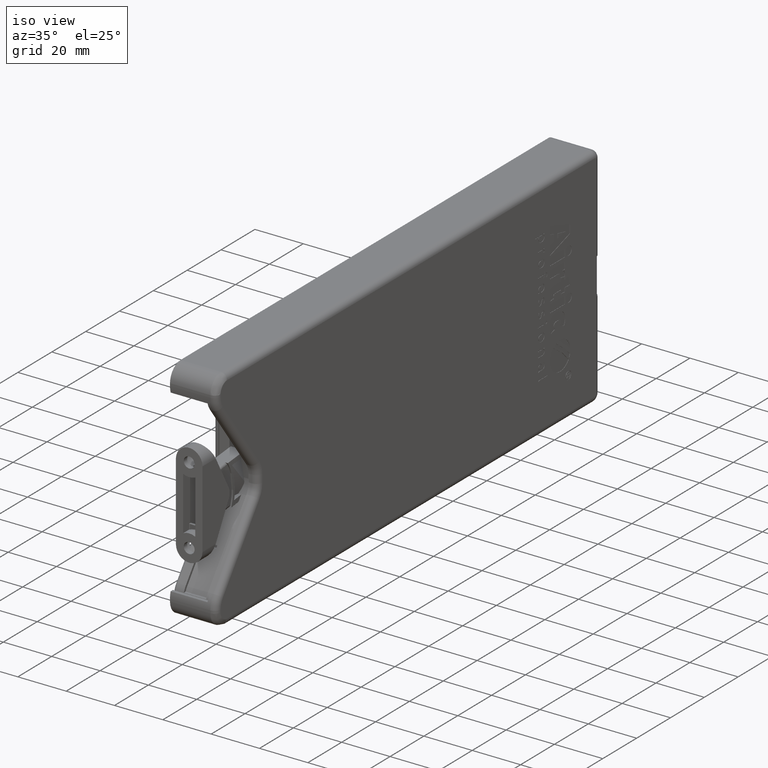
[diagram: clean part render]
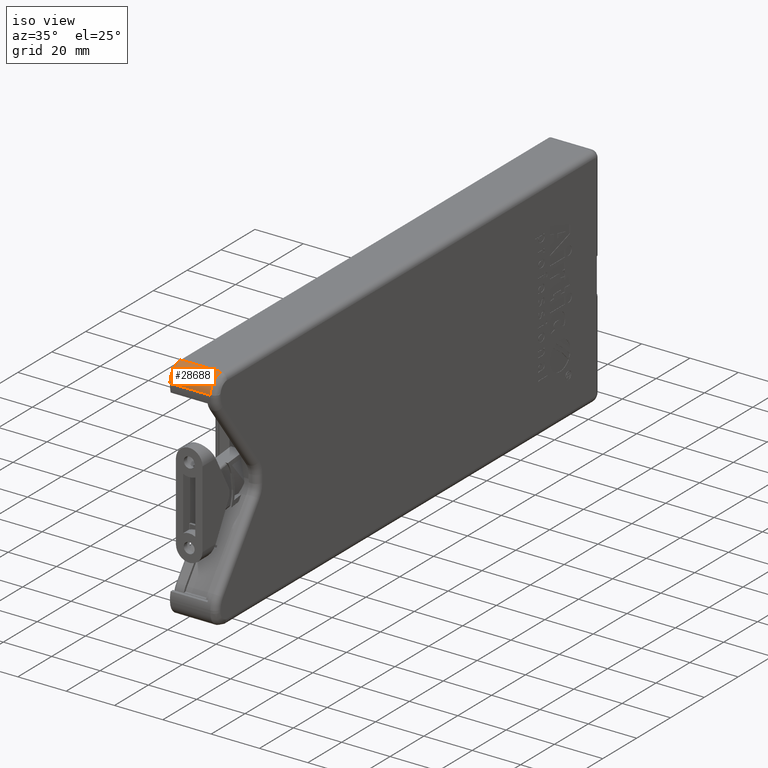
[diagram: same view with one face highlighted and labeled with its STEP entity id]
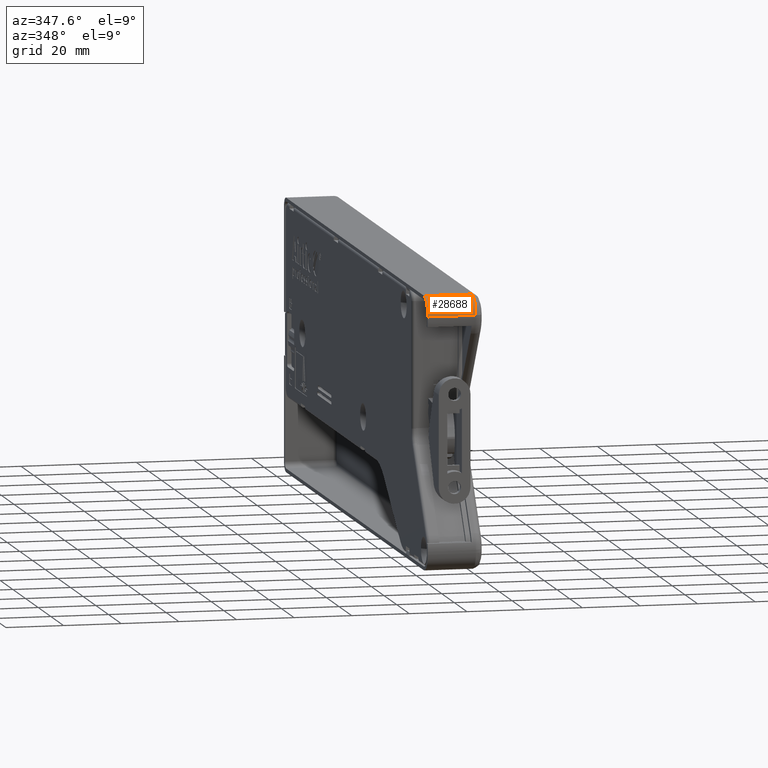
[diagram: same view with one face highlighted and labeled with its STEP entity id]
A machine part, iso view. The second image highlights one B-rep face of the part: STEP entity #28688.
A second angle (auxiliary view) of the same face is appended — the face is thin or edge-on in the first view.
In plain terms, the highlighted face is a freeform B-spline surface patch.
Its self-contained STEP definition (entity closure, byte-faithful):
#999 = CARTESIAN_POINT ( 'NONE',  ( -97.23110527874116800, 82.23789999530295300, -13.97668824094110500 ) ) ;
#1238 = CARTESIAN_POINT ( 'NONE',  ( -98.86859119588773100, 82.03521133781646300, -13.97668824094110300 ) ) ;
#1485 = CARTESIAN_POINT ( 'NONE',  ( -103.2081192344996900, 77.95101965426140100, -13.97668824094110300 ) ) ;
#2660 = CARTESIAN_POINT ( 'NONE',  ( -103.3285211629594900, 77.55400491249487500, 2.713311759058875300 ) ) ;
#3759 = VECTOR ( 'NONE', #37885, 1000.000000000000000 ) ;
#3911 = CARTESIAN_POINT ( 'NONE',  ( -99.27055662711428900, 81.91265799434117400, 2.713311759058875300 ) ) ;
#4877 = CARTESIAN_POINT ( 'NONE',  ( -98.86859119588773100, 82.03521133781646300, 2.713311759058894000 ) ) ;
#5121 = CARTESIAN_POINT ( 'NONE',  ( -101.5499981790979400, 80.52878389387953500, -13.97671324094111100 ) ) ;
#5366 = CARTESIAN_POINT ( 'NONE',  ( -103.2081192344996900, 77.95101965426140100, 2.713311759058894000 ) ) ;
#6366 = LINE ( 'NONE', #49840, #64923 ) ;
#6901 = CARTESIAN_POINT ( 'NONE',  ( -100.0317117191125400, 81.59581555233263800, -13.97668824094110300 ) ) ;
#7157 = CARTESIAN_POINT ( 'NONE',  ( -103.3792816575487400, 77.35114694881775700, -13.97668824094110300 ) ) ;
#8088 = VERTEX_POINT ( 'NONE', #34593 ) ;
#9316 = CARTESIAN_POINT ( 'NONE',  ( -103.1385942647216300, 78.14525942647566100, 2.713311759058875300 ) ) ;
#9577 = CARTESIAN_POINT ( 'NONE',  ( -98.05895420901141800, 82.19686536999825000, 2.713311759058875300 ) ) ;
#10020 = ORIENTED_EDGE ( 'NONE', *, *, #68985, .T. ) ;
#10419 = DIRECTION ( 'NONE',  ( 0.0000000000000000000, 0.0000000000000000000, 1.000000000000000000 ) ) ;
#10569 = CARTESIAN_POINT ( 'NONE',  ( -99.27055662711428900, 81.91265799434117400, 2.713311759058894000 ) ) ;
#10819 = CARTESIAN_POINT ( 'NONE',  ( -101.9853911457395600, 80.09192928764368000, -13.97671324094111100 ) ) ;
#11076 = CARTESIAN_POINT ( 'NONE',  ( -103.3285211629594900, 77.55400491249487500, 2.713311759058894000 ) ) ;
#12659 = CARTESIAN_POINT ( 'NONE',  ( -100.9102800375134300, 81.05565318821453500, -13.97668824094110300 ) ) ;
#12850 = VERTEX_POINT ( 'NONE', #21506 ) ;
#12901 = CARTESIAN_POINT ( 'NONE',  ( -103.5411053322094500, 76.32989494519388500, -13.97668824094110300 ) ) ;
#13821 = CARTESIAN_POINT ( 'NONE',  ( -103.5411053322094500, 76.32989494519388500, 2.713311759058875300 ) ) ;
#15080 = CARTESIAN_POINT ( 'NONE',  ( -102.7093764363872900, 79.07911316921936900, 2.713311759058875300 ) ) ;
#15319 = CARTESIAN_POINT ( 'NONE',  ( -97.23110527874116800, 82.23789999530295300, 2.713311759058888200 ) ) ;
#16312 = CARTESIAN_POINT ( 'NONE',  ( -100.0317117191125400, 81.59581555233263800, 2.713311759058894000 ) ) ;
#16557 = CARTESIAN_POINT ( 'NONE',  ( -102.2477125784534300, 79.77205499879204400, -13.97671324094111100 ) ) ;
#16813 = CARTESIAN_POINT ( 'NONE',  ( -103.3792816575487400, 77.35114694881775700, 2.713311759058894000 ) ) ;
#18360 = CARTESIAN_POINT ( 'NONE',  ( -101.3976498829652100, 80.66746187886404600, -13.97668824094110300 ) ) ;
#18826 = EDGE_CURVE ( 'NONE', #8088, #36290, #6366, .T. ) ;
#19533 = CARTESIAN_POINT ( 'NONE',  ( -103.5411053322094400, 75.91289994167461000, 2.713311759058888200 ) ) ;
#20761 = CARTESIAN_POINT ( 'NONE',  ( -101.9853911457395600, 80.09192928764368000, 2.713311759058875300 ) ) ;
#21506 = CARTESIAN_POINT ( 'NONE',  ( -103.5411053322094400, 75.91289994167461000, 2.713311759058888200 ) ) ;
#21994 = CARTESIAN_POINT ( 'NONE',  ( -100.3941603676216900, 81.40154495441838400, 2.713311759058894000 ) ) ;
#22256 = CARTESIAN_POINT ( 'NONE',  ( -102.7093764363872900, 79.07911316921936900, -13.97671324094111100 ) ) ;
#22360 = EDGE_LOOP ( 'NONE', ( #10020, #34603, #25862, #67113 ) ) ;
#22500 = CARTESIAN_POINT ( 'NONE',  ( -103.5003636432077100, 76.74154357186552000, 2.713311759058894000 ) ) ;
#23572 = B_SPLINE_CURVE_WITH_KNOTS ( 'NONE', 3,
 ( #999, #23802, #35190, #1238, #40901, #6901, #46601, #12659, #52299, #18360, #58019, #24056, #63702, #29732, #69415, #35450, #1485, #41151, #7157, #46835, #12901, #52543 ),
 .UNSPECIFIED., .F., .F.,
 ( 4, 2, 2, 2, 2, 2, 2, 2, 2, 2, 4 ),
 ( 0.0000000000000000000, 0.001233790870759386500, 0.002467581741518773000, 0.003701372612278159700, 0.004318268047657852600, 0.004935163483037545900, 0.006168954353796961300, 0.007402745224556377500, 0.008019640659936105500, 0.008636536095315831800, 0.009870326966075326100 ),
 .UNSPECIFIED. ) ;
#23802 = CARTESIAN_POINT ( 'NONE',  ( -97.64812758813117500, 82.23789999530295300, -13.97668824094110300 ) ) ;
#24056 = CARTESIAN_POINT ( 'NONE',  ( -101.9853911457395600, 80.09192928764368000, -13.97668824094110300 ) ) ;
#25862 = ORIENTED_EDGE ( 'NONE', *, *, #18826, .F. ) ;
#26445 = CARTESIAN_POINT ( 'NONE',  ( -101.3976498829652100, 80.66746187886404600, 2.713311759058875300 ) ) ;
#27430 = CARTESIAN_POINT ( 'NONE',  ( -97.64812758813117500, 82.23789999530295300, -13.97671324094111100 ) ) ;
#27672 = CARTESIAN_POINT ( 'NONE',  ( -100.9102800375134300, 81.05565318821453500, 2.713311759058894000 ) ) ;
#27920 = CARTESIAN_POINT ( 'NONE',  ( -102.9027334506279200, 78.71548998061868500, -13.97671324094111100 ) ) ;
#28167 = CARTESIAN_POINT ( 'NONE',  ( -103.5411053322094500, 76.32989494519388500, 2.713311759058894000 ) ) ;
#28583 = EDGE_CURVE ( 'NONE', #12850, #36290, #51904, .T. ) ;
#28688 = ADVANCED_FACE ( 'NONE', ( #48415 ), #36893, .T. ) ;
#29732 = CARTESIAN_POINT ( 'NONE',  ( -102.7093764363872900, 79.07911316921936900, -13.97668824094110300 ) ) ;
#32146 = CARTESIAN_POINT ( 'NONE',  ( -100.9102800375134300, 81.05565318821453500, 2.713311759058875300 ) ) ;
#32158 = CARTESIAN_POINT ( 'NONE',  ( -103.5411053322094400, 75.91289994167461000, -14.17671324094111200 ) ) ;
#33133 = CARTESIAN_POINT ( 'NONE',  ( -98.05895420901141800, 82.19686536999825000, -13.97671324094111100 ) ) ;
#33379 = CARTESIAN_POINT ( 'NONE',  ( -101.0782215949991100, 80.93065173912582100, 2.713311759058894000 ) ) ;
#33619 = CARTESIAN_POINT ( 'NONE',  ( -103.1385942647216300, 78.14525942647566100, -13.97671324094111100 ) ) ;
#33860 = CARTESIAN_POINT ( 'NONE',  ( -103.5411053322094400, 75.91289994167461000, 2.713311759058894000 ) ) ;
#34593 = CARTESIAN_POINT ( 'NONE',  ( -97.23110527874116800, 82.23789999530295300, -13.97668824094110500 ) ) ;
#34603 = ORIENTED_EDGE ( 'NONE', *, *, #28583, .T. ) ;
#35190 = CARTESIAN_POINT ( 'NONE',  ( -98.05895420901141800, 82.19686536999825000, -13.97668824094110300 ) ) ;
#35450 = CARTESIAN_POINT ( 'NONE',  ( -103.1385942647216300, 78.14525942647566100, -13.97668824094110300 ) ) ;
#35760 = EDGE_CURVE ( 'NONE', #8088, #70410, #23572, .T. ) ;
#36290 = VERTEX_POINT ( 'NONE', #69839 ) ;
#36625 = CARTESIAN_POINT ( 'NONE',  ( -103.3792816575487400, 77.35114694881775700, 2.713311759058875300 ) ) ;
#36893 = B_SPLINE_SURFACE_WITH_KNOTS ( 'NONE', 3, 1, ( 
 ( #38597, #49995 ),
 ( #27430, #67098 ),
 ( #33133, #72822 ),
 ( #38844, #4877 ),
 ( #44542, #10569 ),
 ( #50237, #16312 ),
 ( #55964, #21994 ),
 ( #61659, #27672 ),
 ( #67344, #33379 ),
 ( #73071, #39095 ),
 ( #5121, #44789 ),
 ( #10819, #50495 ),
 ( #16557, #56210 ),
 ( #22256, #61903 ),
 ( #27920, #67590 ),
 ( #33619, #73306 ),
 ( #39334, #5366 ),
 ( #45047, #11076 ),
 ( #50741, #16813 ),
 ( #56458, #22500 ),
 ( #62148, #28167 ),
 ( #67837, #33860 ) ),
 .UNSPECIFIED., .F., .F., .F.,
 ( 4, 2, 2, 2, 2, 2, 2, 2, 2, 2, 4 ),
 ( 2, 2 ),
 ( 0.0000000000000000000, 0.1249999999999970300, 0.2499999999999940600, 0.3749999999999911200, 0.4374999999999896200, 0.4999999999999881200, 0.6249999999999881200, 0.7499999999999881200, 0.8124999999999901200, 0.8749999999999921200, 1.000000000000000000 ),
 ( 0.0000000000000000000, 1.000000000000000000 ),
 .UNSPECIFIED. ) ;
#37871 = CARTESIAN_POINT ( 'NONE',  ( -100.0317117191125400, 81.59581555233263800, 2.713311759058875300 ) ) ;
#37885 = DIRECTION ( 'NONE',  ( 0.0000000000000000000, 0.0000000000000000000, 1.000000000000000000 ) ) ;
#38597 = CARTESIAN_POINT ( 'NONE',  ( -97.23110527874116800, 82.23789999530295300, -13.97671324094111100 ) ) ;
#38844 = CARTESIAN_POINT ( 'NONE',  ( -98.86859119588773100, 82.03521133781646300, -13.97671324094111100 ) ) ;
#39095 = CARTESIAN_POINT ( 'NONE',  ( -101.3976498829652100, 80.66746187886404600, 2.713311759058894000 ) ) ;
#39334 = CARTESIAN_POINT ( 'NONE',  ( -103.2081192344996900, 77.95101965426140100, -13.97671324094111100 ) ) ;
#40901 = CARTESIAN_POINT ( 'NONE',  ( -99.27055662711428900, 81.91265799434117400, -13.97668824094110300 ) ) ;
#41151 = CARTESIAN_POINT ( 'NONE',  ( -103.3285211629594900, 77.55400491249487500, -13.97668824094110300 ) ) ;
#42320 = CARTESIAN_POINT ( 'NONE',  ( -103.2081192344996900, 77.95101965426140100, 2.713311759058875300 ) ) ;
#43559 = CARTESIAN_POINT ( 'NONE',  ( -98.86859119588773100, 82.03521133781646300, 2.713311759058875300 ) ) ;
#44542 = CARTESIAN_POINT ( 'NONE',  ( -99.27055662711428900, 81.91265799434117400, -13.97671324094111100 ) ) ;
#44789 = CARTESIAN_POINT ( 'NONE',  ( -101.5499981790979400, 80.52878389387953500, 2.713311759058894000 ) ) ;
#45047 = CARTESIAN_POINT ( 'NONE',  ( -103.3285211629594900, 77.55400491249487500, -13.97671324094111100 ) ) ;
#46601 = CARTESIAN_POINT ( 'NONE',  ( -100.3941603676216900, 81.40154495441838400, -13.97668824094110300 ) ) ;
#46835 = CARTESIAN_POINT ( 'NONE',  ( -103.5003636432077100, 76.74154357186552000, -13.97668824094110300 ) ) ;
#47202 = LINE ( 'NONE', #32158, #3759 ) ;
#48415 = FACE_OUTER_BOUND ( 'NONE', #22360, .T. ) ;
#48999 = CARTESIAN_POINT ( 'NONE',  ( -102.9027334506279200, 78.71548998061868500, 2.713311759058875300 ) ) ;
#49242 = CARTESIAN_POINT ( 'NONE',  ( -97.64812758813117500, 82.23789999530295300, 2.713311759058875300 ) ) ;
#49840 = CARTESIAN_POINT ( 'NONE',  ( -97.23110527874116800, 82.23789999530295300, -14.17671324094111200 ) ) ;
#49995 = CARTESIAN_POINT ( 'NONE',  ( -97.23110527874116800, 82.23789999530295300, 2.713311759058894000 ) ) ;
#50237 = CARTESIAN_POINT ( 'NONE',  ( -100.0317117191125400, 81.59581555233263800, -13.97671324094111100 ) ) ;
#50495 = CARTESIAN_POINT ( 'NONE',  ( -101.9853911457395600, 80.09192928764368000, 2.713311759058894000 ) ) ;
#50741 = CARTESIAN_POINT ( 'NONE',  ( -103.3792816575487400, 77.35114694881775700, -13.97671324094111100 ) ) ;
#51904 = B_SPLINE_CURVE_WITH_KNOTS ( 'NONE', 3,
 ( #19533, #13821, #70578, #36625, #2660, #42320, #9316, #48999, #15080, #54718, #20761, #60422, #26445, #66121, #32146, #71833, #37871, #3911, #43559, #9577, #49242, #15319 ),
 .UNSPECIFIED., .F., .F.,
 ( 4, 2, 2, 2, 2, 2, 2, 2, 2, 2, 4 ),
 ( 0.0000000000000000000, 0.1250000000000078800, 0.1875000000000098800, 0.2500000000000118800, 0.3750000000000118800, 0.5000000000000118800, 0.5625000000000104400, 0.6250000000000088800, 0.7500000000000060000, 0.8750000000000030000, 1.000000000000000000 ),
 .UNSPECIFIED. ) ;
#52299 = CARTESIAN_POINT ( 'NONE',  ( -101.0782215949991100, 80.93065173912582100, -13.97668824094110300 ) ) ;
#52543 = CARTESIAN_POINT ( 'NONE',  ( -103.5411053322094400, 75.91289994167461000, -13.97668824094110500 ) ) ;
#54718 = CARTESIAN_POINT ( 'NONE',  ( -102.2477125784534300, 79.77205499879204400, 2.713311759058875300 ) ) ;
#55964 = CARTESIAN_POINT ( 'NONE',  ( -100.3941603676216900, 81.40154495441838400, -13.97671324094111100 ) ) ;
#56210 = CARTESIAN_POINT ( 'NONE',  ( -102.2477125784534300, 79.77205499879204400, 2.713311759058894000 ) ) ;
#56458 = CARTESIAN_POINT ( 'NONE',  ( -103.5003636432077100, 76.74154357186552000, -13.97671324094111100 ) ) ;
#58019 = CARTESIAN_POINT ( 'NONE',  ( -101.5499981790979400, 80.52878389387953500, -13.97668824094110300 ) ) ;
#60422 = CARTESIAN_POINT ( 'NONE',  ( -101.5499981790979400, 80.52878389387953500, 2.713311759058875300 ) ) ;
#61659 = CARTESIAN_POINT ( 'NONE',  ( -100.9102800375134300, 81.05565318821453500, -13.97671324094111100 ) ) ;
#61903 = CARTESIAN_POINT ( 'NONE',  ( -102.7093764363872900, 79.07911316921936900, 2.713311759058894000 ) ) ;
#62148 = CARTESIAN_POINT ( 'NONE',  ( -103.5411053322094500, 76.32989494519388500, -13.97671324094111100 ) ) ;
#63702 = CARTESIAN_POINT ( 'NONE',  ( -102.2477125784534200, 79.77205499879204400, -13.97668824094110300 ) ) ;
#64380 = CARTESIAN_POINT ( 'NONE',  ( -103.5411053322094400, 75.91289994167461000, -13.97668824094110500 ) ) ;
#64923 = VECTOR ( 'NONE', #10419, 1000.000000000000000 ) ;
#66121 = CARTESIAN_POINT ( 'NONE',  ( -101.0782215949991100, 80.93065173912582100, 2.713311759058875300 ) ) ;
#67098 = CARTESIAN_POINT ( 'NONE',  ( -97.64812758813117500, 82.23789999530295300, 2.713311759058894000 ) ) ;
#67113 = ORIENTED_EDGE ( 'NONE', *, *, #35760, .T. ) ;
#67344 = CARTESIAN_POINT ( 'NONE',  ( -101.0782215949991100, 80.93065173912582100, -13.97671324094111100 ) ) ;
#67590 = CARTESIAN_POINT ( 'NONE',  ( -102.9027334506279200, 78.71548998061868500, 2.713311759058894000 ) ) ;
#67837 = CARTESIAN_POINT ( 'NONE',  ( -103.5411053322094400, 75.91289994167461000, -13.97671324094111100 ) ) ;
#68985 = EDGE_CURVE ( 'NONE', #70410, #12850, #47202, .T. ) ;
#69415 = CARTESIAN_POINT ( 'NONE',  ( -102.9027334506279200, 78.71548998061868500, -13.97668824094110300 ) ) ;
#69839 = CARTESIAN_POINT ( 'NONE',  ( -97.23110527874116800, 82.23789999530295300, 2.713311759058888200 ) ) ;
#70410 = VERTEX_POINT ( 'NONE', #64380 ) ;
#70578 = CARTESIAN_POINT ( 'NONE',  ( -103.5003636432077100, 76.74154357186552000, 2.713311759058875300 ) ) ;
#71833 = CARTESIAN_POINT ( 'NONE',  ( -100.3941603676216900, 81.40154495441838400, 2.713311759058875300 ) ) ;
#72822 = CARTESIAN_POINT ( 'NONE',  ( -98.05895420901141800, 82.19686536999825000, 2.713311759058894000 ) ) ;
#73071 = CARTESIAN_POINT ( 'NONE',  ( -101.3976498829652100, 80.66746187886404600, -13.97671324094111100 ) ) ;
#73306 = CARTESIAN_POINT ( 'NONE',  ( -103.1385942647216300, 78.14525942647566100, 2.713311759058894000 ) ) ;